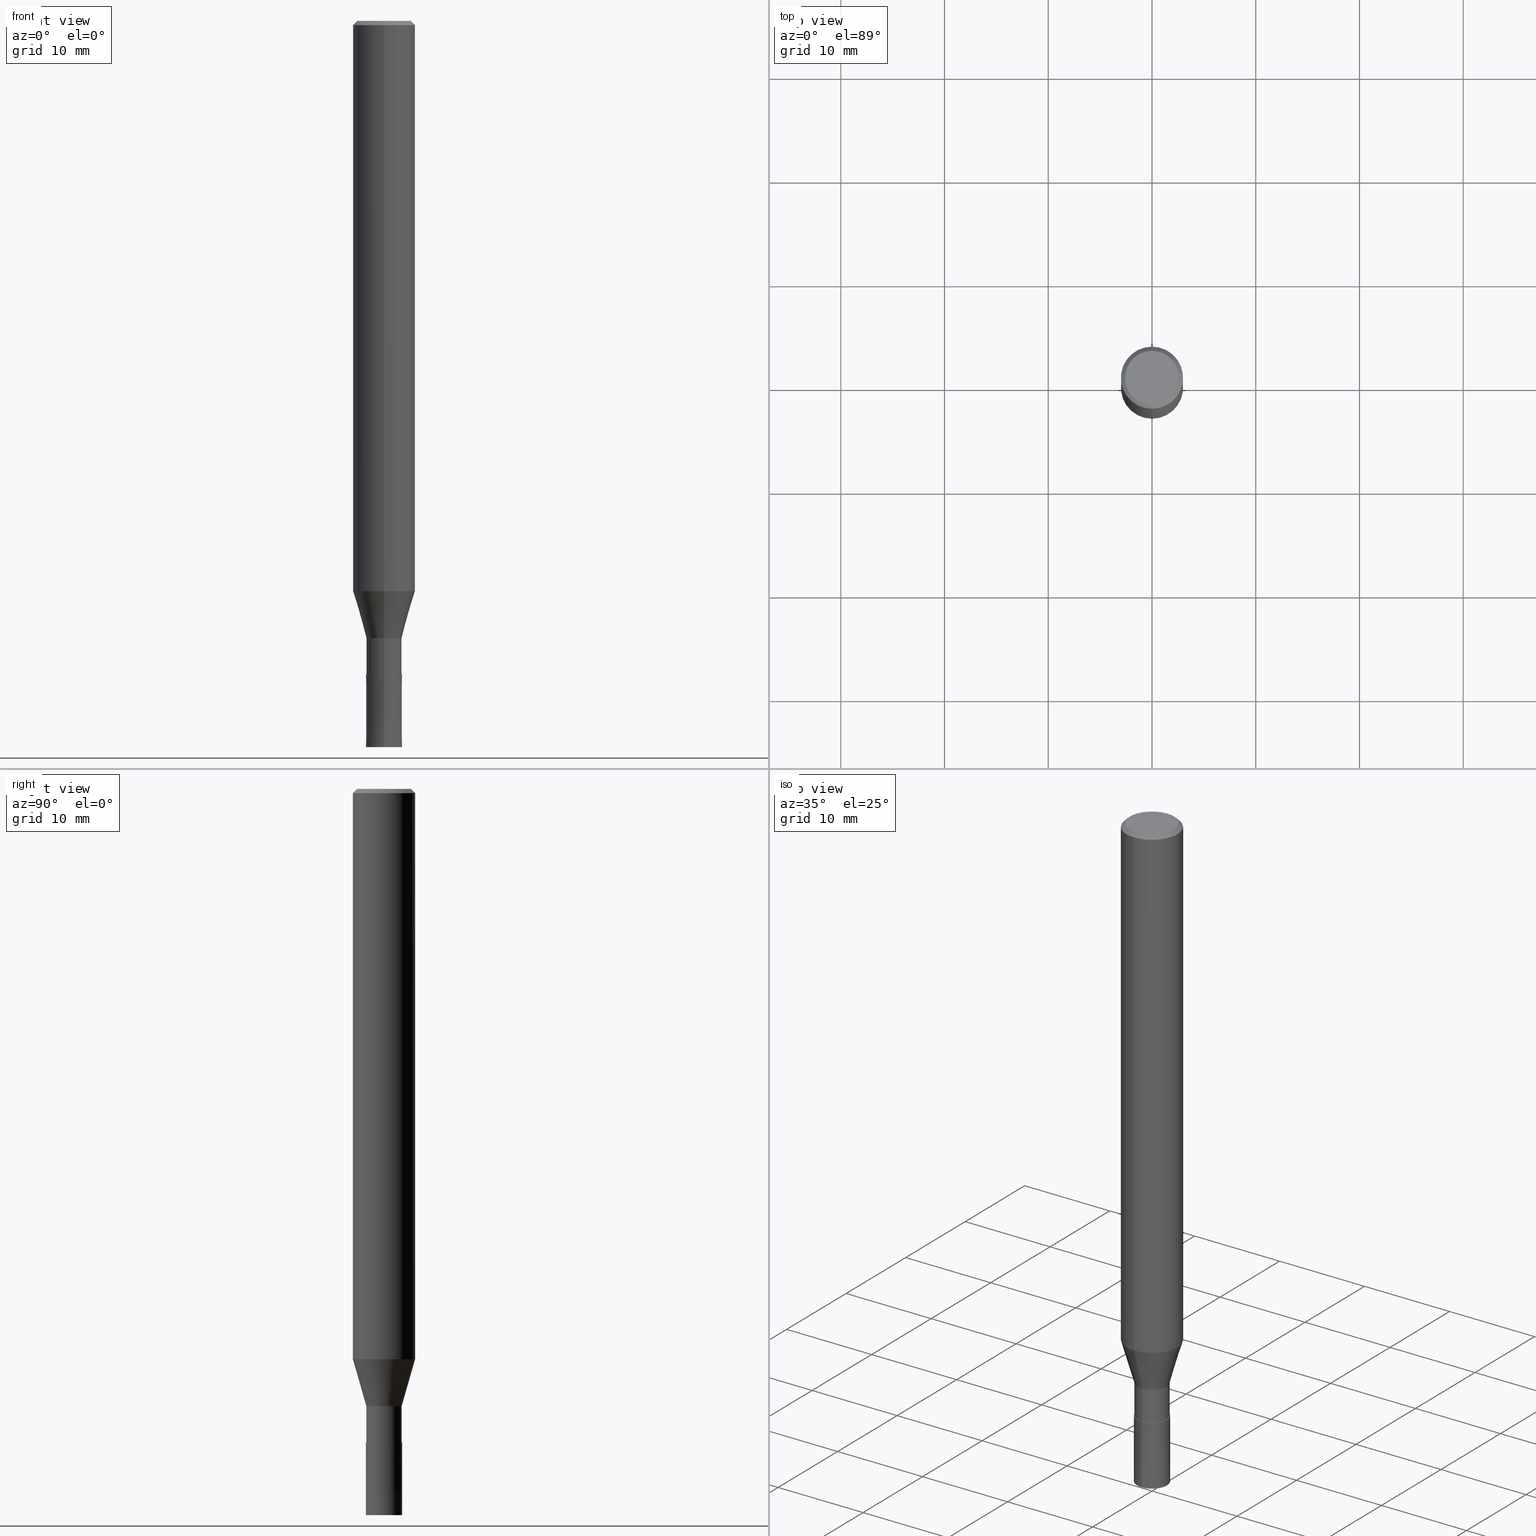
[diagram: canonical four-view strip — front | top / right | iso, engineering-drawing reading convention]
A machine part, canonical four-view strip (front | top / right | iso — engineering-drawing reading convention). The complete STEP part file that produces these views, byte-faithful:
ISO-10303-21;
HEADER;
FILE_DESCRIPTION(('no description'),'unknown implementation level');
FILE_NAME('DLC-AZS3035-105-Huellk.stp','  ',('CIMSOURCE GmbH'),('CADClick - KiM GmbH - www.kimweb.de'),'unknown preprocess','ACIS','unknown authorization');
FILE_SCHEMA(('automotive_design'));
ENDSEC;
DATA;
#1=MECHANICAL_DESIGN_GEOMETRIC_PRESENTATION_REPRESENTATION(' ',(#14,#15,#16,#17,#18,#19,#20,#21,#22,#23,#24,#25,#26,#27,#28,#29,#30,#31,#32,#33,#34,#35,#36,#37,#38,#39,#40,#41,#42,#43,#44,#45,#46,#47,#48,#49,#50,#51,#52,#53,#54,#55,#56,#57,#58,#59,#60,#61,#62,#63,#64,#65,#66,#67,#68,#69,#70,#71,#72),#10);
#2=PRODUCT_DEFINITION_CONTEXT('',#73,'design');
#3=APPLICATION_PROTOCOL_DEFINITION('INTERNATIONAL STANDARD','automotive_design',1994,#73);
#4=PRODUCT_CATEGORY_RELATIONSHIP('NONE','NONE',#74,#75);
#5=SHAPE_DEFINITION_REPRESENTATION(#76,#77);
#6=PRODUCT_DEFINITION_CONTEXT('',#78,'design');
#7=APPLICATION_PROTOCOL_DEFINITION('INTERNATIONAL STANDARD','automotive_design',1994,#78);
#8=PRODUCT_CATEGORY_RELATIONSHIP('NONE','NONE',#79,#80);
#9=SHAPE_DEFINITION_REPRESENTATION(#81,#82);
#10= (GEOMETRIC_REPRESENTATION_CONTEXT(3)GLOBAL_UNCERTAINTY_ASSIGNED_CONTEXT((#85))GLOBAL_UNIT_ASSIGNED_CONTEXT((#87,#88,#89))REPRESENTATION_CONTEXT('NONE','WORKSPACE'));
#14=STYLED_ITEM('',(#91),#92);
#15=STYLED_ITEM('',(#93),#94);
#16=STYLED_ITEM('',(#95),#96);
#17=STYLED_ITEM('',(#97),#98);
#18=STYLED_ITEM('',(#99),#100);
#19=STYLED_ITEM('',(#101),#102);
#20=STYLED_ITEM('',(#103),#104);
#21=STYLED_ITEM('',(#105),#106);
#22=STYLED_ITEM('',(#107),#108);
#23=STYLED_ITEM('',(#109),#110);
#24=STYLED_ITEM('',(#111),#112);
#25=STYLED_ITEM('',(#113),#114);
#26=STYLED_ITEM('',(#115),#116);
#27=STYLED_ITEM('',(#117),#118);
#28=STYLED_ITEM('',(#119),#120);
#29=STYLED_ITEM('',(#121),#122);
#30=STYLED_ITEM('',(#123),#124);
#31=STYLED_ITEM('',(#125),#126);
#32=STYLED_ITEM('',(#127),#128);
#33=STYLED_ITEM('',(#129),#130);
#34=STYLED_ITEM('',(#131),#132);
#35=STYLED_ITEM('',(#133),#134);
#36=STYLED_ITEM('',(#135),#136);
#37=STYLED_ITEM('',(#137),#138);
#38=STYLED_ITEM('',(#139),#140);
#39=STYLED_ITEM('',(#141),#142);
#40=STYLED_ITEM('',(#143),#144);
#41=STYLED_ITEM('',(#145),#146);
#42=STYLED_ITEM('',(#147),#148);
#43=STYLED_ITEM('',(#149),#150);
#44=STYLED_ITEM('',(#151),#152);
#45=STYLED_ITEM('',(#153),#154);
#46=STYLED_ITEM('',(#155),#156);
#47=STYLED_ITEM('',(#157),#158);
#48=STYLED_ITEM('',(#159),#160);
#49=STYLED_ITEM('',(#161),#162);
#50=STYLED_ITEM('',(#163),#164);
#51=STYLED_ITEM('',(#165),#166);
#52=STYLED_ITEM('',(#167),#168);
#53=STYLED_ITEM('',(#169),#170);
#54=STYLED_ITEM('',(#171),#172);
#55=STYLED_ITEM('',(#173),#174);
#56=STYLED_ITEM('',(#175),#176);
#57=STYLED_ITEM('',(#177),#178);
#58=STYLED_ITEM('',(#179),#180);
#59=STYLED_ITEM('',(#181),#182);
#60=STYLED_ITEM('',(#183),#184);
#61=STYLED_ITEM('',(#185),#186);
#62=STYLED_ITEM('',(#187),#188);
#63=STYLED_ITEM('',(#189),#190);
#64=STYLED_ITEM('',(#191),#192);
#65=STYLED_ITEM('',(#193),#194);
#66=STYLED_ITEM('',(#195),#196);
#67=STYLED_ITEM('',(#197),#198);
#68=STYLED_ITEM('',(#199),#200);
#69=STYLED_ITEM('',(#201),#202);
#70=STYLED_ITEM('',(#203),#204);
#71=STYLED_ITEM('',(#205),#206);
#72=STYLED_ITEM('',(#207),#208);
#73=APPLICATION_CONTEXT(' ');
#74=PRODUCT_CATEGORY('part','NONE');
#75=PRODUCT_RELATED_PRODUCT_CATEGORY('detail',' ',(#209));
#76=PRODUCT_DEFINITION_SHAPE('NONE','NONE',#210);
#77=ADVANCED_BREP_SHAPE_REPRESENTATION('1',(#202,#211),#10);
#78=APPLICATION_CONTEXT(' ');
#79=PRODUCT_CATEGORY('part','NONE');
#80=PRODUCT_RELATED_PRODUCT_CATEGORY('detail',' ',(#212));
#81=PRODUCT_DEFINITION_SHAPE('NONE','NONE',#213);
#82=ADVANCED_BREP_SHAPE_REPRESENTATION('2',(#182,#214),#10);
#85=UNCERTAINTY_MEASURE_WITH_UNIT(LENGTH_MEASURE(1.0E-006),#87,'','');
#87= (CONVERSION_BASED_UNIT('MILLIMETRE',#217)LENGTH_UNIT()NAMED_UNIT(#220));
#88= (NAMED_UNIT(#222)PLANE_ANGLE_UNIT()SI_UNIT($,.RADIAN.));
#89= (NAMED_UNIT(#222)SOLID_ANGLE_UNIT()SI_UNIT($,.STERADIAN.));
#91=PRESENTATION_STYLE_ASSIGNMENT((#228));
#92=EDGE_CURVE('',#142,#208,#229,.T.);
#93=PRESENTATION_STYLE_ASSIGNMENT((#230));
#94=EDGE_CURVE('',#172,#110,#231,.T.);
#95=PRESENTATION_STYLE_ASSIGNMENT((#232));
#96=ADVANCED_FACE('',(#233),#234,.T.);
#97=PRESENTATION_STYLE_ASSIGNMENT((#235));
#98=VERTEX_POINT('',#236);
#99=PRESENTATION_STYLE_ASSIGNMENT((#237));
#100=EDGE_CURVE('',#128,#142,#238,.T.);
#101=PRESENTATION_STYLE_ASSIGNMENT((#239));
#102=ADVANCED_FACE('',(#240),#241,.T.);
#103=PRESENTATION_STYLE_ASSIGNMENT((#242));
#104=EDGE_CURVE('',#198,#112,#243,.T.);
#105=PRESENTATION_STYLE_ASSIGNMENT((#244));
#106=EDGE_CURVE('',#154,#136,#245,.T.);
#107=PRESENTATION_STYLE_ASSIGNMENT((#246));
#108=ADVANCED_FACE('',(#247),#248,.T.);
#109=PRESENTATION_STYLE_ASSIGNMENT((#249));
#110=VERTEX_POINT('',#250);
#111=PRESENTATION_STYLE_ASSIGNMENT((#251));
#112=VERTEX_POINT('',#252);
#113=PRESENTATION_STYLE_ASSIGNMENT((#253));
#114=EDGE_CURVE('',#112,#198,#254,.T.);
#115=PRESENTATION_STYLE_ASSIGNMENT((#255));
#116=EDGE_CURVE('',#158,#198,#256,.T.);
#117=PRESENTATION_STYLE_ASSIGNMENT((#257));
#118=ADVANCED_FACE('',(#258),#259,.T.);
#119=PRESENTATION_STYLE_ASSIGNMENT((#260));
#120=EDGE_CURVE('',#110,#172,#261,.T.);
#121=PRESENTATION_STYLE_ASSIGNMENT((#262));
#122=EDGE_CURVE('',#172,#190,#263,.T.);
#123=PRESENTATION_STYLE_ASSIGNMENT((#264));
#124=ADVANCED_FACE('',(#265),#266,.T.);
#125=PRESENTATION_STYLE_ASSIGNMENT((#267));
#126=VERTEX_POINT('',#268);
#127=PRESENTATION_STYLE_ASSIGNMENT((#269));
#128=VERTEX_POINT('',#270);
#129=PRESENTATION_STYLE_ASSIGNMENT((#271));
#130=EDGE_CURVE('',#140,#110,#272,.T.);
#131=PRESENTATION_STYLE_ASSIGNMENT((#273));
#132=EDGE_CURVE('',#154,#142,#274,.T.);
#133=PRESENTATION_STYLE_ASSIGNMENT((#275));
#134=EDGE_CURVE('',#126,#128,#276,.T.);
#135=PRESENTATION_STYLE_ASSIGNMENT((#277));
#136=VERTEX_POINT('',#278);
#137=PRESENTATION_STYLE_ASSIGNMENT((#279));
#138=VERTEX_POINT('',#280);
#139=PRESENTATION_STYLE_ASSIGNMENT((#281));
#140=VERTEX_POINT('',#282);
#141=PRESENTATION_STYLE_ASSIGNMENT((#283));
#142=VERTEX_POINT('',#284);
#143=PRESENTATION_STYLE_ASSIGNMENT((#285));
#144=VERTEX_POINT('',#286);
#145=PRESENTATION_STYLE_ASSIGNMENT((#287));
#146=EDGE_CURVE('',#126,#208,#288,.T.);
#147=PRESENTATION_STYLE_ASSIGNMENT((#289));
#148=ADVANCED_FACE('',(#290),#291,.T.);
#149=PRESENTATION_STYLE_ASSIGNMENT((#292));
#150=ADVANCED_FACE('',(#293),#294,.T.);
#151=PRESENTATION_STYLE_ASSIGNMENT((#295));
#152=EDGE_CURVE('',#144,#138,#296,.T.);
#153=PRESENTATION_STYLE_ASSIGNMENT((#297));
#154=VERTEX_POINT('',#298);
#155=PRESENTATION_STYLE_ASSIGNMENT((#299));
#156=EDGE_CURVE('',#142,#128,#300,.T.);
#157=PRESENTATION_STYLE_ASSIGNMENT((#301));
#158=VERTEX_POINT('',#302);
#159=PRESENTATION_STYLE_ASSIGNMENT((#303));
#160=EDGE_CURVE('',#136,#154,#304,.T.);
#161=PRESENTATION_STYLE_ASSIGNMENT((#305));
#162=EDGE_CURVE('',#138,#140,#306,.T.);
#163=PRESENTATION_STYLE_ASSIGNMENT((#307));
#164=EDGE_CURVE('',#98,#158,#308,.T.);
#165=PRESENTATION_STYLE_ASSIGNMENT((#309));
#166=ADVANCED_FACE('',(#310),#311,.T.);
#167=PRESENTATION_STYLE_ASSIGNMENT((#312));
#168=ADVANCED_FACE('',(#313),#314,.T.);
#169=PRESENTATION_STYLE_ASSIGNMENT((#315));
#170=EDGE_CURVE('',#208,#126,#316,.T.);
#171=PRESENTATION_STYLE_ASSIGNMENT((#317));
#172=VERTEX_POINT('',#318);
#173=PRESENTATION_STYLE_ASSIGNMENT((#319));
#174=EDGE_CURVE('',#112,#98,#320,.T.);
#175=PRESENTATION_STYLE_ASSIGNMENT((#321));
#176=ADVANCED_FACE('',(#322),#323,.T.);
#177=PRESENTATION_STYLE_ASSIGNMENT((#324));
#178=EDGE_CURVE('',#128,#136,#325,.T.);
#179=PRESENTATION_STYLE_ASSIGNMENT((#326));
#180=ADVANCED_FACE('',(#327,#328),#329,.T.);
#181=PRESENTATION_STYLE_ASSIGNMENT((#330));
#182=MANIFOLD_SOLID_BREP('2',#331);
#183=PRESENTATION_STYLE_ASSIGNMENT((#332));
#184=ADVANCED_FACE('',(#333),#334,.T.);
#185=PRESENTATION_STYLE_ASSIGNMENT((#335));
#186=ADVANCED_FACE('',(#336),#337,.T.);
#187=PRESENTATION_STYLE_ASSIGNMENT((#338));
#188=ADVANCED_FACE('',(#339),#340,.T.);
#189=PRESENTATION_STYLE_ASSIGNMENT((#341));
#190=VERTEX_POINT('',#342);
#191=PRESENTATION_STYLE_ASSIGNMENT((#343));
#192=EDGE_CURVE('',#138,#144,#344,.T.);
#193=PRESENTATION_STYLE_ASSIGNMENT((#345));
#194=EDGE_CURVE('',#190,#140,#346,.T.);
#195=PRESENTATION_STYLE_ASSIGNMENT((#347));
#196=EDGE_CURVE('',#158,#98,#348,.T.);
#197=PRESENTATION_STYLE_ASSIGNMENT((#349));
#198=VERTEX_POINT('',#350);
#199=PRESENTATION_STYLE_ASSIGNMENT((#351));
#200=ADVANCED_FACE('',(#352),#353,.T.);
#201=PRESENTATION_STYLE_ASSIGNMENT((#354));
#202=MANIFOLD_SOLID_BREP('1',#355);
#203=PRESENTATION_STYLE_ASSIGNMENT((#356));
#204=EDGE_CURVE('',#190,#144,#357,.T.);
#205=PRESENTATION_STYLE_ASSIGNMENT((#358));
#206=EDGE_CURVE('',#140,#190,#359,.T.);
#207=PRESENTATION_STYLE_ASSIGNMENT((#360));
#208=VERTEX_POINT('',#361);
#209=PRODUCT('1','1','PART-1-DESC',(#362));
#210=PRODUCT_DEFINITION('NONE','NONE',#363,#2);
#211=AXIS2_PLACEMENT_3D('',#364,#365,#366);
#212=PRODUCT('2','2','PART-2-DESC',(#367));
#213=PRODUCT_DEFINITION('NONE','NONE',#368,#6);
#214=AXIS2_PLACEMENT_3D('',#369,#370,#371);
#217=LENGTH_MEASURE_WITH_UNIT(LENGTH_MEASURE(1.0),#372);
#220=DIMENSIONAL_EXPONENTS(1.0,0.0,0.0,0.0,0.0,0.0,0.0);
#222=DIMENSIONAL_EXPONENTS(0.0,0.0,0.0,0.0,0.0,0.0,0.0);
#228=CURVE_STYLE('',#373,POSITIVE_LENGTH_MEASURE(1.0E-006),#374);
#229=LINE('',#375,#376);
#230=CURVE_STYLE('',#377,POSITIVE_LENGTH_MEASURE(1.0E-006),#378);
#231=CIRCLE('',#379,2.99995);
#232=SURFACE_STYLE_USAGE(.BOTH.,#380);
#233=FACE_OUTER_BOUND('',#381,.T.);
#234=CYLINDRICAL_SURFACE('',#382,1.69995);
#235=POINT_STYLE(' ',#383,POSITIVE_LENGTH_MEASURE(1.0E-006),#384);
#236=CARTESIAN_POINT('',(0.0,1.75,-70.0));
#237=CURVE_STYLE('',#385,POSITIVE_LENGTH_MEASURE(1.0E-006),#386);
#238=CIRCLE('',#387,3.0);
#239=SURFACE_STYLE_USAGE(.BOTH.,#388);
#240=FACE_OUTER_BOUND('',#389,.T.);
#241=PLANE('',#390);
#242=CURVE_STYLE('',#391,POSITIVE_LENGTH_MEASURE(1.0E-006),#392);
#243=CIRCLE('',#393,1.7499);
#244=CURVE_STYLE('',#394,POSITIVE_LENGTH_MEASURE(1.0E-006),#395);
#245=CIRCLE('',#396,3.0);
#246=SURFACE_STYLE_USAGE(.BOTH.,#397);
#247=FACE_OUTER_BOUND('',#398,.T.);
#248=PLANE('',#399);
#249=POINT_STYLE(' ',#400,POSITIVE_LENGTH_MEASURE(1.0E-006),#401);
#250=CARTESIAN_POINT('',(3.67375783114944E-016,-2.99995,-54.966));
#251=POINT_STYLE(' ',#402,POSITIVE_LENGTH_MEASURE(1.0E-006),#403);
#252=CARTESIAN_POINT('',(0.0,1.7499,-63.0));
#253=CURVE_STYLE('',#404,POSITIVE_LENGTH_MEASURE(1.0E-006),#405);
#254=CIRCLE('',#406,1.7499);
#255=CURVE_STYLE('',#407,POSITIVE_LENGTH_MEASURE(1.0E-006),#408);
#256=LINE('',#409,#410);
#257=SURFACE_STYLE_USAGE(.BOTH.,#411);
#258=FACE_OUTER_BOUND('',#412,.T.);
#259=CONICAL_SURFACE('',#413,2.8,0.78539816339745);
#260=CURVE_STYLE('',#414,POSITIVE_LENGTH_MEASURE(1.0E-006),#415);
#261=CIRCLE('',#416,2.99995);
#262=CURVE_STYLE('',#417,POSITIVE_LENGTH_MEASURE(1.0E-006),#418);
#263=LINE('',#419,#420);
#264=SURFACE_STYLE_USAGE(.BOTH.,#421);
#265=FACE_OUTER_BOUND('',#422,.T.);
#266=CYLINDRICAL_SURFACE('',#423,3.0);
#267=POINT_STYLE(' ',#424,POSITIVE_LENGTH_MEASURE(1.0E-006),#425);
#268=CARTESIAN_POINT('',(0.0,2.6,0.0));
#269=POINT_STYLE(' ',#426,POSITIVE_LENGTH_MEASURE(1.0E-006),#427);
#270=CARTESIAN_POINT('',(0.0,3.0,-0.399999999999999));
#271=CURVE_STYLE('',#428,POSITIVE_LENGTH_MEASURE(1.0E-006),#429);
#272=LINE('',#430,#431);
#273=CURVE_STYLE('',#432,POSITIVE_LENGTH_MEASURE(1.0E-006),#433);
#274=LINE('',#434,#435);
#275=CURVE_STYLE('',#436,POSITIVE_LENGTH_MEASURE(1.0E-006),#437);
#276=LINE('',#438,#439);
#277=POINT_STYLE(' ',#440,POSITIVE_LENGTH_MEASURE(1.0E-006),#441);
#278=CARTESIAN_POINT('',(0.0,3.0,-54.966));
#279=POINT_STYLE(' ',#442,POSITIVE_LENGTH_MEASURE(1.0E-006),#443);
#280=CARTESIAN_POINT('',(2.08176957118035E-016,-1.69995,-63.0));
#281=POINT_STYLE(' ',#444,POSITIVE_LENGTH_MEASURE(1.0E-006),#445);
#282=CARTESIAN_POINT('',(2.08176957118035E-016,-1.69995,-59.5));
#283=POINT_STYLE(' ',#446,POSITIVE_LENGTH_MEASURE(1.0E-006),#447);
#284=CARTESIAN_POINT('',(3.67381906146713E-016,-3.0,-0.399999999999999));
#285=POINT_STYLE(' ',#448,POSITIVE_LENGTH_MEASURE(1.0E-006),#449);
#286=CARTESIAN_POINT('',(0.0,1.69995,-63.0));
#287=CURVE_STYLE('',#450,POSITIVE_LENGTH_MEASURE(1.0E-006),#451);
#288=CIRCLE('',#452,2.6);
#289=SURFACE_STYLE_USAGE(.BOTH.,#453);
#290=FACE_OUTER_BOUND('',#454,.T.);
#291=CONICAL_SURFACE('',#455,1.74995,1.42857142847409E-005);
#292=SURFACE_STYLE_USAGE(.BOTH.,#456);
#293=FACE_OUTER_BOUND('',#457,.T.);
#294=CONICAL_SURFACE('',#458,2.8,0.78539816339745);
#295=CURVE_STYLE('',#459,POSITIVE_LENGTH_MEASURE(1.0E-006),#460);
#296=CIRCLE('',#461,1.69995);
#297=POINT_STYLE(' ',#462,POSITIVE_LENGTH_MEASURE(1.0E-006),#463);
#298=CARTESIAN_POINT('',(3.67381906146713E-016,-3.0,-54.966));
#299=CURVE_STYLE('',#464,POSITIVE_LENGTH_MEASURE(1.0E-006),#465);
#300=CIRCLE('',#466,3.0);
#301=POINT_STYLE(' ',#467,POSITIVE_LENGTH_MEASURE(1.0E-006),#468);
#302=CARTESIAN_POINT('',(2.14306111918916E-016,-1.75,-70.0));
#303=CURVE_STYLE('',#469,POSITIVE_LENGTH_MEASURE(1.0E-006),#470);
#304=CIRCLE('',#471,3.0);
#305=CURVE_STYLE('',#472,POSITIVE_LENGTH_MEASURE(1.0E-006),#473);
#306=LINE('',#474,#475);
#307=CURVE_STYLE('',#476,POSITIVE_LENGTH_MEASURE(1.0E-006),#477);
#308=CIRCLE('',#478,1.75);
#309=SURFACE_STYLE_USAGE(.BOTH.,#479);
#310=FACE_OUTER_BOUND('',#480,.T.);
#311=CYLINDRICAL_SURFACE('',#481,3.0);
#312=SURFACE_STYLE_USAGE(.BOTH.,#482);
#313=FACE_OUTER_BOUND('',#483,.T.);
#314=PLANE('',#484);
#315=CURVE_STYLE('',#485,POSITIVE_LENGTH_MEASURE(1.0E-006),#486);
#316=CIRCLE('',#487,2.6);
#317=POINT_STYLE(' ',#488,POSITIVE_LENGTH_MEASURE(1.0E-006),#489);
#318=CARTESIAN_POINT('',(0.0,2.99995,-54.966));
#319=CURVE_STYLE('',#490,POSITIVE_LENGTH_MEASURE(1.0E-006),#491);
#320=LINE('',#492,#493);
#321=SURFACE_STYLE_USAGE(.BOTH.,#494);
#322=FACE_OUTER_BOUND('',#495,.T.);
#323=CONICAL_SURFACE('',#496,1.74995,1.42857142847409E-005);
#324=CURVE_STYLE('',#497,POSITIVE_LENGTH_MEASURE(1.0E-006),#498);
#325=LINE('',#499,#500);
#326=SURFACE_STYLE_USAGE(.BOTH.,#501);
#327=FACE_OUTER_BOUND('',#502,.T.);
#328=FACE_BOUND('',#503,.T.);
#329=PLANE('',#504);
#330=SURFACE_STYLE_USAGE(.BOTH.,#505);
#331=CLOSED_SHELL('',(#148,#102,#176,#108));
#332=SURFACE_STYLE_USAGE(.BOTH.,#506);
#333=FACE_OUTER_BOUND('',#507,.T.);
#334=PLANE('',#508);
#335=SURFACE_STYLE_USAGE(.BOTH.,#509);
#336=FACE_OUTER_BOUND('',#510,.T.);
#337=CONICAL_SURFACE('',#511,2.34995,0.279231570902613);
#338=SURFACE_STYLE_USAGE(.BOTH.,#512);
#339=FACE_OUTER_BOUND('',#513,.T.);
#340=CYLINDRICAL_SURFACE('',#514,1.69995);
#341=POINT_STYLE(' ',#515,POSITIVE_LENGTH_MEASURE(1.0E-006),#516);
#342=CARTESIAN_POINT('',(0.0,1.69995,-59.5));
#343=CURVE_STYLE('',#517,POSITIVE_LENGTH_MEASURE(1.0E-006),#518);
#344=CIRCLE('',#519,1.69995);
#345=CURVE_STYLE('',#520,POSITIVE_LENGTH_MEASURE(1.0E-006),#521);
#346=CIRCLE('',#522,1.69995);
#347=CURVE_STYLE('',#523,POSITIVE_LENGTH_MEASURE(1.0E-006),#524);
#348=CIRCLE('',#525,1.75);
#349=POINT_STYLE(' ',#526,POSITIVE_LENGTH_MEASURE(1.0E-006),#527);
#350=CARTESIAN_POINT('',(2.14293865855378E-016,-1.7499,-63.0));
#351=SURFACE_STYLE_USAGE(.BOTH.,#528);
#352=FACE_OUTER_BOUND('',#529,.T.);
#353=CONICAL_SURFACE('',#530,2.34995,0.279231570902613);
#354=SURFACE_STYLE_USAGE(.BOTH.,#531);
#355=CLOSED_SHELL('',(#96,#200,#166,#150,#180,#184,#118,#124,#186,#188,#168));
#356=CURVE_STYLE('',#532,POSITIVE_LENGTH_MEASURE(1.0E-006),#533);
#357=LINE('',#534,#535);
#358=CURVE_STYLE('',#536,POSITIVE_LENGTH_MEASURE(1.0E-006),#537);
#359=CIRCLE('',#538,1.69995);
#360=POINT_STYLE(' ',#539,POSITIVE_LENGTH_MEASURE(1.0E-006),#540);
#361=CARTESIAN_POINT('',(3.18397651993818E-016,-2.6,0.0));
#362=PRODUCT_CONTEXT('',#73,'mechanical');
#363=PRODUCT_DEFINITION_FORMATION_WITH_SPECIFIED_SOURCE(' ','NONE',#209,.NOT_KNOWN.);
#364=CARTESIAN_POINT('',(0.0,0.0,0.0));
#365=DIRECTION('',(0.0,0.0,1.0));
#366=DIRECTION('',(1.0,0.0,0.0));
#367=PRODUCT_CONTEXT('',#78,'mechanical');
#368=PRODUCT_DEFINITION_FORMATION_WITH_SPECIFIED_SOURCE(' ','NONE',#212,.NOT_KNOWN.);
#369=CARTESIAN_POINT('',(0.0,0.0,0.0));
#370=DIRECTION('',(0.0,0.0,1.0));
#371=DIRECTION('',(1.0,0.0,0.0));
#372= (NAMED_UNIT(#220)LENGTH_UNIT()SI_UNIT(.MILLI.,.METRE.));
#373=DRAUGHTING_PRE_DEFINED_CURVE_FONT('continuous');
#374=COLOUR_RGB('',0.498039215803146,0.498039215803146,0.498039215803146);
#375=CARTESIAN_POINT('',(3.42889779070266E-016,-2.8,-0.199999999999996));
#376=VECTOR('',#542,1.0);
#377=DRAUGHTING_PRE_DEFINED_CURVE_FONT('continuous');
#378=COLOUR_RGB('',0.498039215803146,0.498039215803146,0.498039215803146);
#379=AXIS2_PLACEMENT_3D('',#543,#544,#545);
#380=SURFACE_SIDE_STYLE('',(#546));
#381=EDGE_LOOP('',(#547,#548,#549,#550));
#382=AXIS2_PLACEMENT_3D('',#551,#552,#553);
#383=PRE_DEFINED_MARKER('');
#384=COLOUR_RGB('',0.800000011920929,0.800000011920929,0.800000011920929);
#385=DRAUGHTING_PRE_DEFINED_CURVE_FONT('continuous');
#386=COLOUR_RGB('',0.498039215803146,0.498039215803146,0.498039215803146);
#387=AXIS2_PLACEMENT_3D('',#554,#555,#556);
#388=SURFACE_SIDE_STYLE('',(#557));
#389=EDGE_LOOP('',(#558,#559));
#390=AXIS2_PLACEMENT_3D('',#560,#561,#562);
#391=DRAUGHTING_PRE_DEFINED_CURVE_FONT('continuous');
#392=COLOUR_RGB('',0.800000011920929,0.800000011920929,0.800000011920929);
#393=AXIS2_PLACEMENT_3D('',#563,#564,#565);
#394=DRAUGHTING_PRE_DEFINED_CURVE_FONT('continuous');
#395=COLOUR_RGB('',0.498039215803146,0.498039215803146,0.498039215803146);
#396=AXIS2_PLACEMENT_3D('',#566,#567,#568);
#397=SURFACE_SIDE_STYLE('',(#569));
#398=EDGE_LOOP('',(#570,#571));
#399=AXIS2_PLACEMENT_3D('',#572,#573,#574);
#400=PRE_DEFINED_MARKER('');
#401=COLOUR_RGB('',0.498039215803146,0.498039215803146,0.498039215803146);
#402=PRE_DEFINED_MARKER('');
#403=COLOUR_RGB('',0.800000011920929,0.800000011920929,0.800000011920929);
#404=DRAUGHTING_PRE_DEFINED_CURVE_FONT('continuous');
#405=COLOUR_RGB('',0.800000011920929,0.800000011920929,0.800000011920929);
#406=AXIS2_PLACEMENT_3D('',#575,#576,#577);
#407=DRAUGHTING_PRE_DEFINED_CURVE_FONT('continuous');
#408=COLOUR_RGB('',0.800000011920929,0.800000011920929,0.800000011920929);
#409=CARTESIAN_POINT('',(2.14299988887147E-016,-1.74995,-66.5));
#410=VECTOR('',#578,1.0);
#411=SURFACE_SIDE_STYLE('',(#579));
#412=EDGE_LOOP('',(#580,#581,#582,#583));
#413=AXIS2_PLACEMENT_3D('',#584,#585,#586);
#414=DRAUGHTING_PRE_DEFINED_CURVE_FONT('continuous');
#415=COLOUR_RGB('',0.498039215803146,0.498039215803146,0.498039215803146);
#416=AXIS2_PLACEMENT_3D('',#587,#588,#589);
#417=DRAUGHTING_PRE_DEFINED_CURVE_FONT('continuous');
#418=COLOUR_RGB('',0.498039215803146,0.498039215803146,0.498039215803146);
#419=CARTESIAN_POINT('',(-2.8777637011649E-016,2.34995,-57.233));
#420=VECTOR('',#590,1.0);
#421=SURFACE_SIDE_STYLE('',(#591));
#422=EDGE_LOOP('',(#592,#593,#594,#595));
#423=AXIS2_PLACEMENT_3D('',#596,#597,#598);
#424=PRE_DEFINED_MARKER('');
#425=COLOUR_RGB('',0.498039215803146,0.498039215803146,0.498039215803146);
#426=PRE_DEFINED_MARKER('');
#427=COLOUR_RGB('',0.498039215803146,0.498039215803146,0.498039215803146);
#428=DRAUGHTING_PRE_DEFINED_CURVE_FONT('continuous');
#429=COLOUR_RGB('',0.498039215803146,0.498039215803146,0.498039215803146);
#430=CARTESIAN_POINT('',(2.8777637011649E-016,-2.34995,-57.233));
#431=VECTOR('',#599,1.0);
#432=DRAUGHTING_PRE_DEFINED_CURVE_FONT('continuous');
#433=COLOUR_RGB('',0.498039215803146,0.498039215803146,0.498039215803146);
#434=CARTESIAN_POINT('',(3.67381906146713E-016,-3.0,-27.683));
#435=VECTOR('',#600,1.0);
#436=DRAUGHTING_PRE_DEFINED_CURVE_FONT('continuous');
#437=COLOUR_RGB('',0.498039215803146,0.498039215803146,0.498039215803146);
#438=CARTESIAN_POINT('',(-3.42889779070266E-016,2.8,-0.199999999999996));
#439=VECTOR('',#601,1.0);
#440=PRE_DEFINED_MARKER('');
#441=COLOUR_RGB('',0.498039215803146,0.498039215803146,0.498039215803146);
#442=PRE_DEFINED_MARKER('');
#443=COLOUR_RGB('',0.498039215803146,0.498039215803146,0.498039215803146);
#444=PRE_DEFINED_MARKER('');
#445=COLOUR_RGB('',0.498039215803146,0.498039215803146,0.498039215803146);
#446=PRE_DEFINED_MARKER('');
#447=COLOUR_RGB('',0.498039215803146,0.498039215803146,0.498039215803146);
#448=PRE_DEFINED_MARKER('');
#449=COLOUR_RGB('',0.498039215803146,0.498039215803146,0.498039215803146);
#450=DRAUGHTING_PRE_DEFINED_CURVE_FONT('continuous');
#451=COLOUR_RGB('',0.498039215803146,0.498039215803146,0.498039215803146);
#452=AXIS2_PLACEMENT_3D('',#602,#603,#604);
#453=SURFACE_SIDE_STYLE('',(#605));
#454=EDGE_LOOP('',(#606,#607,#608,#609));
#455=AXIS2_PLACEMENT_3D('',#610,#611,#612);
#456=SURFACE_SIDE_STYLE('',(#613));
#457=EDGE_LOOP('',(#614,#615,#616,#617));
#458=AXIS2_PLACEMENT_3D('',#618,#619,#620);
#459=DRAUGHTING_PRE_DEFINED_CURVE_FONT('continuous');
#460=COLOUR_RGB('',0.498039215803146,0.498039215803146,0.498039215803146);
#461=AXIS2_PLACEMENT_3D('',#621,#622,#623);
#462=PRE_DEFINED_MARKER('');
#463=COLOUR_RGB('',0.498039215803146,0.498039215803146,0.498039215803146);
#464=DRAUGHTING_PRE_DEFINED_CURVE_FONT('continuous');
#465=COLOUR_RGB('',0.498039215803146,0.498039215803146,0.498039215803146);
#466=AXIS2_PLACEMENT_3D('',#624,#625,#626);
#467=PRE_DEFINED_MARKER('');
#468=COLOUR_RGB('',0.800000011920929,0.800000011920929,0.800000011920929);
#469=DRAUGHTING_PRE_DEFINED_CURVE_FONT('continuous');
#470=COLOUR_RGB('',0.498039215803146,0.498039215803146,0.498039215803146);
#471=AXIS2_PLACEMENT_3D('',#627,#628,#629);
#472=DRAUGHTING_PRE_DEFINED_CURVE_FONT('continuous');
#473=COLOUR_RGB('',0.498039215803146,0.498039215803146,0.498039215803146);
#474=CARTESIAN_POINT('',(2.08176957118035E-016,-1.69995,-61.25));
#475=VECTOR('',#630,1.0);
#476=DRAUGHTING_PRE_DEFINED_CURVE_FONT('continuous');
#477=COLOUR_RGB('',0.800000011920929,0.800000011920929,0.800000011920929);
#478=AXIS2_PLACEMENT_3D('',#631,#632,#633);
#479=SURFACE_SIDE_STYLE('',(#634));
#480=EDGE_LOOP('',(#635,#636,#637,#638));
#481=AXIS2_PLACEMENT_3D('',#639,#640,#641);
#482=SURFACE_SIDE_STYLE('',(#642));
#483=EDGE_LOOP('',(#643,#644));
#484=AXIS2_PLACEMENT_3D('',#645,#646,#647);
#485=DRAUGHTING_PRE_DEFINED_CURVE_FONT('continuous');
#486=COLOUR_RGB('',0.498039215803146,0.498039215803146,0.498039215803146);
#487=AXIS2_PLACEMENT_3D('',#648,#649,#650);
#488=PRE_DEFINED_MARKER('');
#489=COLOUR_RGB('',0.498039215803146,0.498039215803146,0.498039215803146);
#490=DRAUGHTING_PRE_DEFINED_CURVE_FONT('continuous');
#491=COLOUR_RGB('',0.800000011920929,0.800000011920929,0.800000011920929);
#492=CARTESIAN_POINT('',(-2.14299988887147E-016,1.74995,-66.5));
#493=VECTOR('',#651,1.0);
#494=SURFACE_SIDE_STYLE('',(#652));
#495=EDGE_LOOP('',(#653,#654,#655,#656));
#496=AXIS2_PLACEMENT_3D('',#657,#658,#659);
#497=DRAUGHTING_PRE_DEFINED_CURVE_FONT('continuous');
#498=COLOUR_RGB('',0.498039215803146,0.498039215803146,0.498039215803146);
#499=CARTESIAN_POINT('',(-3.67381906146713E-016,3.0,-27.683));
#500=VECTOR('',#660,1.0);
#501=SURFACE_SIDE_STYLE('',(#661));
#502=EDGE_LOOP('',(#662,#663));
#503=EDGE_LOOP('',(#664,#665));
#504=AXIS2_PLACEMENT_3D('',#666,#667,#668);
#505=SURFACE_SIDE_STYLE('',(#669));
#506=SURFACE_SIDE_STYLE('',(#670));
#507=EDGE_LOOP('',(#671,#672));
#508=AXIS2_PLACEMENT_3D('',#673,#674,#675);
#509=SURFACE_SIDE_STYLE('',(#676));
#510=EDGE_LOOP('',(#677,#678,#679,#680));
#511=AXIS2_PLACEMENT_3D('',#681,#682,#683);
#512=SURFACE_SIDE_STYLE('',(#684));
#513=EDGE_LOOP('',(#685,#686,#687,#688));
#514=AXIS2_PLACEMENT_3D('',#689,#690,#691);
#515=PRE_DEFINED_MARKER('');
#516=COLOUR_RGB('',0.498039215803146,0.498039215803146,0.498039215803146);
#517=DRAUGHTING_PRE_DEFINED_CURVE_FONT('continuous');
#518=COLOUR_RGB('',0.498039215803146,0.498039215803146,0.498039215803146);
#519=AXIS2_PLACEMENT_3D('',#692,#693,#694);
#520=DRAUGHTING_PRE_DEFINED_CURVE_FONT('continuous');
#521=COLOUR_RGB('',0.498039215803146,0.498039215803146,0.498039215803146);
#522=AXIS2_PLACEMENT_3D('',#695,#696,#697);
#523=DRAUGHTING_PRE_DEFINED_CURVE_FONT('continuous');
#524=COLOUR_RGB('',0.800000011920929,0.800000011920929,0.800000011920929);
#525=AXIS2_PLACEMENT_3D('',#698,#699,#700);
#526=PRE_DEFINED_MARKER('');
#527=COLOUR_RGB('',0.800000011920929,0.800000011920929,0.800000011920929);
#528=SURFACE_SIDE_STYLE('',(#701));
#529=EDGE_LOOP('',(#702,#703,#704,#705));
#530=AXIS2_PLACEMENT_3D('',#706,#707,#708);
#531=SURFACE_SIDE_STYLE('',(#709));
#532=DRAUGHTING_PRE_DEFINED_CURVE_FONT('continuous');
#533=COLOUR_RGB('',0.498039215803146,0.498039215803146,0.498039215803146);
#534=CARTESIAN_POINT('',(-2.08176957118035E-016,1.69995,-61.25));
#535=VECTOR('',#710,1.0);
#536=DRAUGHTING_PRE_DEFINED_CURVE_FONT('continuous');
#537=COLOUR_RGB('',0.498039215803146,0.498039215803146,0.498039215803146);
#538=AXIS2_PLACEMENT_3D('',#711,#712,#713);
#539=PRE_DEFINED_MARKER('');
#540=COLOUR_RGB('',0.498039215803146,0.498039215803146,0.498039215803146);
#542=DIRECTION('',(-8.65927457071937E-017,0.707106781186549,0.707106781186546));
#543=CARTESIAN_POINT('',(0.0,0.0,-54.966));
#544=DIRECTION('',(0.0,0.0,-1.0));
#545=DIRECTION('',(0.0,1.0,0.0));
#546=SURFACE_STYLE_FILL_AREA(#714);
#547=ORIENTED_EDGE('',*,*,#204,.F.);
#548=ORIENTED_EDGE('',*,*,#194,.T.);
#549=ORIENTED_EDGE('',*,*,#162,.F.);
#550=ORIENTED_EDGE('',*,*,#152,.F.);
#551=CARTESIAN_POINT('',(0.0,0.0,-61.25));
#552=DIRECTION('',(-0.0,-0.0,1.0));
#553=DIRECTION('',(0.0,1.0,0.0));
#554=CARTESIAN_POINT('',(0.0,0.0,-0.399999999999999));
#555=DIRECTION('',(0.0,0.0,-1.0));
#556=DIRECTION('',(0.0,1.0,0.0));
#557=SURFACE_STYLE_FILL_AREA(#715);
#558=ORIENTED_EDGE('',*,*,#114,.F.);
#559=ORIENTED_EDGE('',*,*,#104,.F.);
#560=CARTESIAN_POINT('',(0.0,0.87495,-63.0));
#561=DIRECTION('',(-0.0,0.0,1.0));
#562=DIRECTION('',(0.0,-1.0,0.0));
#563=CARTESIAN_POINT('',(0.0,0.0,-63.0));
#564=DIRECTION('',(0.0,0.0,-1.0));
#565=DIRECTION('',(0.0,1.0,0.0));
#566=CARTESIAN_POINT('',(0.0,0.0,-54.966));
#567=DIRECTION('',(0.0,0.0,-1.0));
#568=DIRECTION('',(0.0,1.0,0.0));
#569=SURFACE_STYLE_FILL_AREA(#716);
#570=ORIENTED_EDGE('',*,*,#164,.T.);
#571=ORIENTED_EDGE('',*,*,#196,.T.);
#572=CARTESIAN_POINT('',(0.0,0.8725,-70.0));
#573=DIRECTION('',(0.0,0.0,-1.0));
#574=DIRECTION('',(0.0,1.0,0.0));
#575=CARTESIAN_POINT('',(0.0,0.0,-63.0));
#576=DIRECTION('',(0.0,0.0,-1.0));
#577=DIRECTION('',(0.0,1.0,0.0));
#578=DIRECTION('',(-1.74943764813897E-021,1.4285714284255E-005,0.999999999897959));
#579=SURFACE_STYLE_FILL_AREA(#717);
#580=ORIENTED_EDGE('',*,*,#134,.T.);
#581=ORIENTED_EDGE('',*,*,#156,.F.);
#582=ORIENTED_EDGE('',*,*,#92,.T.);
#583=ORIENTED_EDGE('',*,*,#170,.T.);
#584=CARTESIAN_POINT('',(0.0,0.0,-0.199999999999996));
#585=DIRECTION('',(0.0,-0.0,-1.0));
#586=DIRECTION('',(0.0,1.0,0.0));
#587=CARTESIAN_POINT('',(0.0,0.0,-54.966));
#588=DIRECTION('',(0.0,0.0,-1.0));
#589=DIRECTION('',(0.0,1.0,0.0));
#590=DIRECTION('',(3.37522407896812E-017,-0.275617064082103,-0.961267514267887));
#591=SURFACE_STYLE_FILL_AREA(#718);
#592=ORIENTED_EDGE('',*,*,#178,.T.);
#593=ORIENTED_EDGE('',*,*,#106,.F.);
#594=ORIENTED_EDGE('',*,*,#132,.T.);
#595=ORIENTED_EDGE('',*,*,#156,.T.);
#596=CARTESIAN_POINT('',(0.0,0.0,-27.683));
#597=DIRECTION('',(-0.0,-0.0,1.0));
#598=DIRECTION('',(0.0,1.0,0.0));
#599=DIRECTION('',(3.37522407896812E-017,-0.275617064082103,0.961267514267887));
#600=DIRECTION('',(-0.0,-0.0,1.0));
#601=DIRECTION('',(-8.65927457071937E-017,0.707106781186549,-0.707106781186546));
#602=CARTESIAN_POINT('',(0.0,0.0,0.0));
#603=DIRECTION('',(0.0,0.0,-1.0));
#604=DIRECTION('',(0.0,1.0,0.0));
#605=SURFACE_STYLE_FILL_AREA(#719);
#606=ORIENTED_EDGE('',*,*,#174,.F.);
#607=ORIENTED_EDGE('',*,*,#114,.T.);
#608=ORIENTED_EDGE('',*,*,#116,.F.);
#609=ORIENTED_EDGE('',*,*,#164,.F.);
#610=CARTESIAN_POINT('',(0.0,0.0,-66.5));
#611=DIRECTION('',(0.0,-0.0,-1.0));
#612=DIRECTION('',(0.0,1.0,0.0));
#613=SURFACE_STYLE_FILL_AREA(#720);
#614=ORIENTED_EDGE('',*,*,#134,.F.);
#615=ORIENTED_EDGE('',*,*,#146,.T.);
#616=ORIENTED_EDGE('',*,*,#92,.F.);
#617=ORIENTED_EDGE('',*,*,#100,.F.);
#618=CARTESIAN_POINT('',(0.0,0.0,-0.199999999999996));
#619=DIRECTION('',(0.0,-0.0,-1.0));
#620=DIRECTION('',(0.0,1.0,0.0));
#621=CARTESIAN_POINT('',(0.0,0.0,-63.0));
#622=DIRECTION('',(0.0,0.0,-1.0));
#623=DIRECTION('',(0.0,1.0,0.0));
#624=CARTESIAN_POINT('',(0.0,0.0,-0.399999999999999));
#625=DIRECTION('',(0.0,0.0,-1.0));
#626=DIRECTION('',(0.0,1.0,0.0));
#627=CARTESIAN_POINT('',(0.0,0.0,-54.966));
#628=DIRECTION('',(0.0,0.0,-1.0));
#629=DIRECTION('',(0.0,1.0,0.0));
#630=DIRECTION('',(-0.0,-0.0,1.0));
#631=CARTESIAN_POINT('',(0.0,0.0,-70.0));
#632=DIRECTION('',(0.0,0.0,-1.0));
#633=DIRECTION('',(0.0,1.0,0.0));
#634=SURFACE_STYLE_FILL_AREA(#721);
#635=ORIENTED_EDGE('',*,*,#178,.F.);
#636=ORIENTED_EDGE('',*,*,#100,.T.);
#637=ORIENTED_EDGE('',*,*,#132,.F.);
#638=ORIENTED_EDGE('',*,*,#160,.F.);
#639=CARTESIAN_POINT('',(0.0,0.0,-27.683));
#640=DIRECTION('',(-0.0,-0.0,1.0));
#641=DIRECTION('',(0.0,1.0,0.0));
#642=SURFACE_STYLE_FILL_AREA(#722);
#643=ORIENTED_EDGE('',*,*,#152,.T.);
#644=ORIENTED_EDGE('',*,*,#192,.T.);
#645=CARTESIAN_POINT('',(0.0,0.849975,-63.0));
#646=DIRECTION('',(0.0,0.0,-1.0));
#647=DIRECTION('',(0.0,1.0,0.0));
#648=CARTESIAN_POINT('',(0.0,0.0,0.0));
#649=DIRECTION('',(0.0,0.0,-1.0));
#650=DIRECTION('',(0.0,1.0,0.0));
#651=DIRECTION('',(-1.74943764813898E-021,1.4285714284255E-005,-0.999999999897959));
#652=SURFACE_STYLE_FILL_AREA(#723);
#653=ORIENTED_EDGE('',*,*,#174,.T.);
#654=ORIENTED_EDGE('',*,*,#196,.F.);
#655=ORIENTED_EDGE('',*,*,#116,.T.);
#656=ORIENTED_EDGE('',*,*,#104,.T.);
#657=CARTESIAN_POINT('',(0.0,0.0,-66.5));
#658=DIRECTION('',(0.0,-0.0,-1.0));
#659=DIRECTION('',(0.0,1.0,0.0));
#660=DIRECTION('',(0.0,0.0,-1.0));
#661=SURFACE_STYLE_FILL_AREA(#724);
#662=ORIENTED_EDGE('',*,*,#160,.T.);
#663=ORIENTED_EDGE('',*,*,#106,.T.);
#664=ORIENTED_EDGE('',*,*,#94,.F.);
#665=ORIENTED_EDGE('',*,*,#120,.F.);
#666=CARTESIAN_POINT('',(0.0,1.5,-54.966));
#667=DIRECTION('',(0.0,0.0,-1.0));
#668=DIRECTION('',(0.0,1.0,0.0));
#669=SURFACE_STYLE_FILL_AREA(#725);
#670=SURFACE_STYLE_FILL_AREA(#726);
#671=ORIENTED_EDGE('',*,*,#146,.F.);
#672=ORIENTED_EDGE('',*,*,#170,.F.);
#673=CARTESIAN_POINT('',(0.0,1.3,0.0));
#674=DIRECTION('',(-0.0,0.0,1.0));
#675=DIRECTION('',(0.0,-1.0,0.0));
#676=SURFACE_STYLE_FILL_AREA(#727);
#677=ORIENTED_EDGE('',*,*,#122,.T.);
#678=ORIENTED_EDGE('',*,*,#206,.F.);
#679=ORIENTED_EDGE('',*,*,#130,.T.);
#680=ORIENTED_EDGE('',*,*,#120,.T.);
#681=CARTESIAN_POINT('',(0.0,0.0,-57.233));
#682=DIRECTION('',(-0.0,-0.0,1.0));
#683=DIRECTION('',(0.0,1.0,0.0));
#684=SURFACE_STYLE_FILL_AREA(#728);
#685=ORIENTED_EDGE('',*,*,#204,.T.);
#686=ORIENTED_EDGE('',*,*,#192,.F.);
#687=ORIENTED_EDGE('',*,*,#162,.T.);
#688=ORIENTED_EDGE('',*,*,#206,.T.);
#689=CARTESIAN_POINT('',(0.0,0.0,-61.25));
#690=DIRECTION('',(-0.0,-0.0,1.0));
#691=DIRECTION('',(0.0,1.0,0.0));
#692=CARTESIAN_POINT('',(0.0,0.0,-63.0));
#693=DIRECTION('',(0.0,0.0,-1.0));
#694=DIRECTION('',(0.0,1.0,0.0));
#695=CARTESIAN_POINT('',(0.0,0.0,-59.5));
#696=DIRECTION('',(0.0,0.0,-1.0));
#697=DIRECTION('',(0.0,1.0,0.0));
#698=CARTESIAN_POINT('',(0.0,0.0,-70.0));
#699=DIRECTION('',(0.0,0.0,-1.0));
#700=DIRECTION('',(0.0,1.0,0.0));
#701=SURFACE_STYLE_FILL_AREA(#729);
#702=ORIENTED_EDGE('',*,*,#122,.F.);
#703=ORIENTED_EDGE('',*,*,#94,.T.);
#704=ORIENTED_EDGE('',*,*,#130,.F.);
#705=ORIENTED_EDGE('',*,*,#194,.F.);
#706=CARTESIAN_POINT('',(0.0,0.0,-57.233));
#707=DIRECTION('',(-0.0,-0.0,1.0));
#708=DIRECTION('',(0.0,1.0,0.0));
#709=SURFACE_STYLE_FILL_AREA(#730);
#710=DIRECTION('',(0.0,0.0,-1.0));
#711=CARTESIAN_POINT('',(0.0,0.0,-59.5));
#712=DIRECTION('',(0.0,0.0,-1.0));
#713=DIRECTION('',(0.0,1.0,0.0));
#714=FILL_AREA_STYLE('',(#731));
#715=FILL_AREA_STYLE('',(#732));
#716=FILL_AREA_STYLE('',(#733));
#717=FILL_AREA_STYLE('',(#734));
#718=FILL_AREA_STYLE('',(#735));
#719=FILL_AREA_STYLE('',(#736));
#720=FILL_AREA_STYLE('',(#737));
#721=FILL_AREA_STYLE('',(#738));
#722=FILL_AREA_STYLE('',(#739));
#723=FILL_AREA_STYLE('',(#740));
#724=FILL_AREA_STYLE('',(#741));
#725=FILL_AREA_STYLE('',(#742));
#726=FILL_AREA_STYLE('',(#743));
#727=FILL_AREA_STYLE('',(#744));
#728=FILL_AREA_STYLE('',(#745));
#729=FILL_AREA_STYLE('',(#746));
#730=FILL_AREA_STYLE('',(#747));
#731=FILL_AREA_STYLE_COLOUR('',#748);
#732=FILL_AREA_STYLE_COLOUR('',#749);
#733=FILL_AREA_STYLE_COLOUR('',#750);
#734=FILL_AREA_STYLE_COLOUR('',#751);
#735=FILL_AREA_STYLE_COLOUR('',#752);
#736=FILL_AREA_STYLE_COLOUR('',#753);
#737=FILL_AREA_STYLE_COLOUR('',#754);
#738=FILL_AREA_STYLE_COLOUR('',#755);
#739=FILL_AREA_STYLE_COLOUR('',#756);
#740=FILL_AREA_STYLE_COLOUR('',#757);
#741=FILL_AREA_STYLE_COLOUR('',#758);
#742=FILL_AREA_STYLE_COLOUR('',#759);
#743=FILL_AREA_STYLE_COLOUR('',#760);
#744=FILL_AREA_STYLE_COLOUR('',#761);
#745=FILL_AREA_STYLE_COLOUR('',#762);
#746=FILL_AREA_STYLE_COLOUR('',#763);
#747=FILL_AREA_STYLE_COLOUR('',#764);
#748=COLOUR_RGB('',0.498039215803146,0.498039215803146,0.498039215803146);
#749=COLOUR_RGB('',0.800000011920929,0.800000011920929,0.800000011920929);
#750=COLOUR_RGB('',0.800000011920929,0.800000011920929,0.800000011920929);
#751=COLOUR_RGB('',0.498039215803146,0.498039215803146,0.498039215803146);
#752=COLOUR_RGB('',0.498039215803146,0.498039215803146,0.498039215803146);
#753=COLOUR_RGB('',0.800000011920929,0.800000011920929,0.800000011920929);
#754=COLOUR_RGB('',0.498039215803146,0.498039215803146,0.498039215803146);
#755=COLOUR_RGB('',0.498039215803146,0.498039215803146,0.498039215803146);
#756=COLOUR_RGB('',0.498039215803146,0.498039215803146,0.498039215803146);
#757=COLOUR_RGB('',0.800000011920929,0.800000011920929,0.800000011920929);
#758=COLOUR_RGB('',0.498039215803146,0.498039215803146,0.498039215803146);
#759=COLOUR_RGB('',0.800000011920929,0.800000011920929,0.800000011920929);
#760=COLOUR_RGB('',0.498039215803146,0.498039215803146,0.498039215803146);
#761=COLOUR_RGB('',0.498039215803146,0.498039215803146,0.498039215803146);
#762=COLOUR_RGB('',0.498039215803146,0.498039215803146,0.498039215803146);
#763=COLOUR_RGB('',0.498039215803146,0.498039215803146,0.498039215803146);
#764=COLOUR_RGB('',0.498039215803146,0.498039215803146,0.498039215803146);
#765=AXIS2_PLACEMENT_3D('PCS',#766,#767,#768);
#766=CARTESIAN_POINT('',(0.0,0.0,0.0));
#767=DIRECTION('',(0.0,0.0,1.0));
#768=DIRECTION('',(1.0,0.0,0.0));
#769=AXIS2_PLACEMENT_3D('CIP',#770,#771,#772);
#770=CARTESIAN_POINT('',(0.0,0.0,-70.0));
#771=DIRECTION('',(0.0,0.0,1.0));
#772=DIRECTION('',(1.0,0.0,0.0));
#773=AXIS2_PLACEMENT_3D('CRP',#774,#775,#776);
#774=CARTESIAN_POINT('',(-1.75,0.0,-70.0));
#775=DIRECTION('',(0.0,0.0,1.0));
#776=DIRECTION('',(1.0,0.0,0.0));
#777=AXIS2_PLACEMENT_3D('MCS',#778,#779,#780);
#778=CARTESIAN_POINT('',(0.0,0.0,-54.966));
#779=DIRECTION('',(0.0,0.0,1.0));
#780=DIRECTION('',(1.0,0.0,0.0));
#781=CONSTRUCTIVE_GEOMETRY_REPRESENTATION_RELATIONSHIP('coordinate systems',$,#77,#782);
#782=CONSTRUCTIVE_GEOMETRY_REPRESENTATION('coordinate systems',(#765,#769,#773,#777),#10);
ENDSEC;
END-ISO-10303-21;
